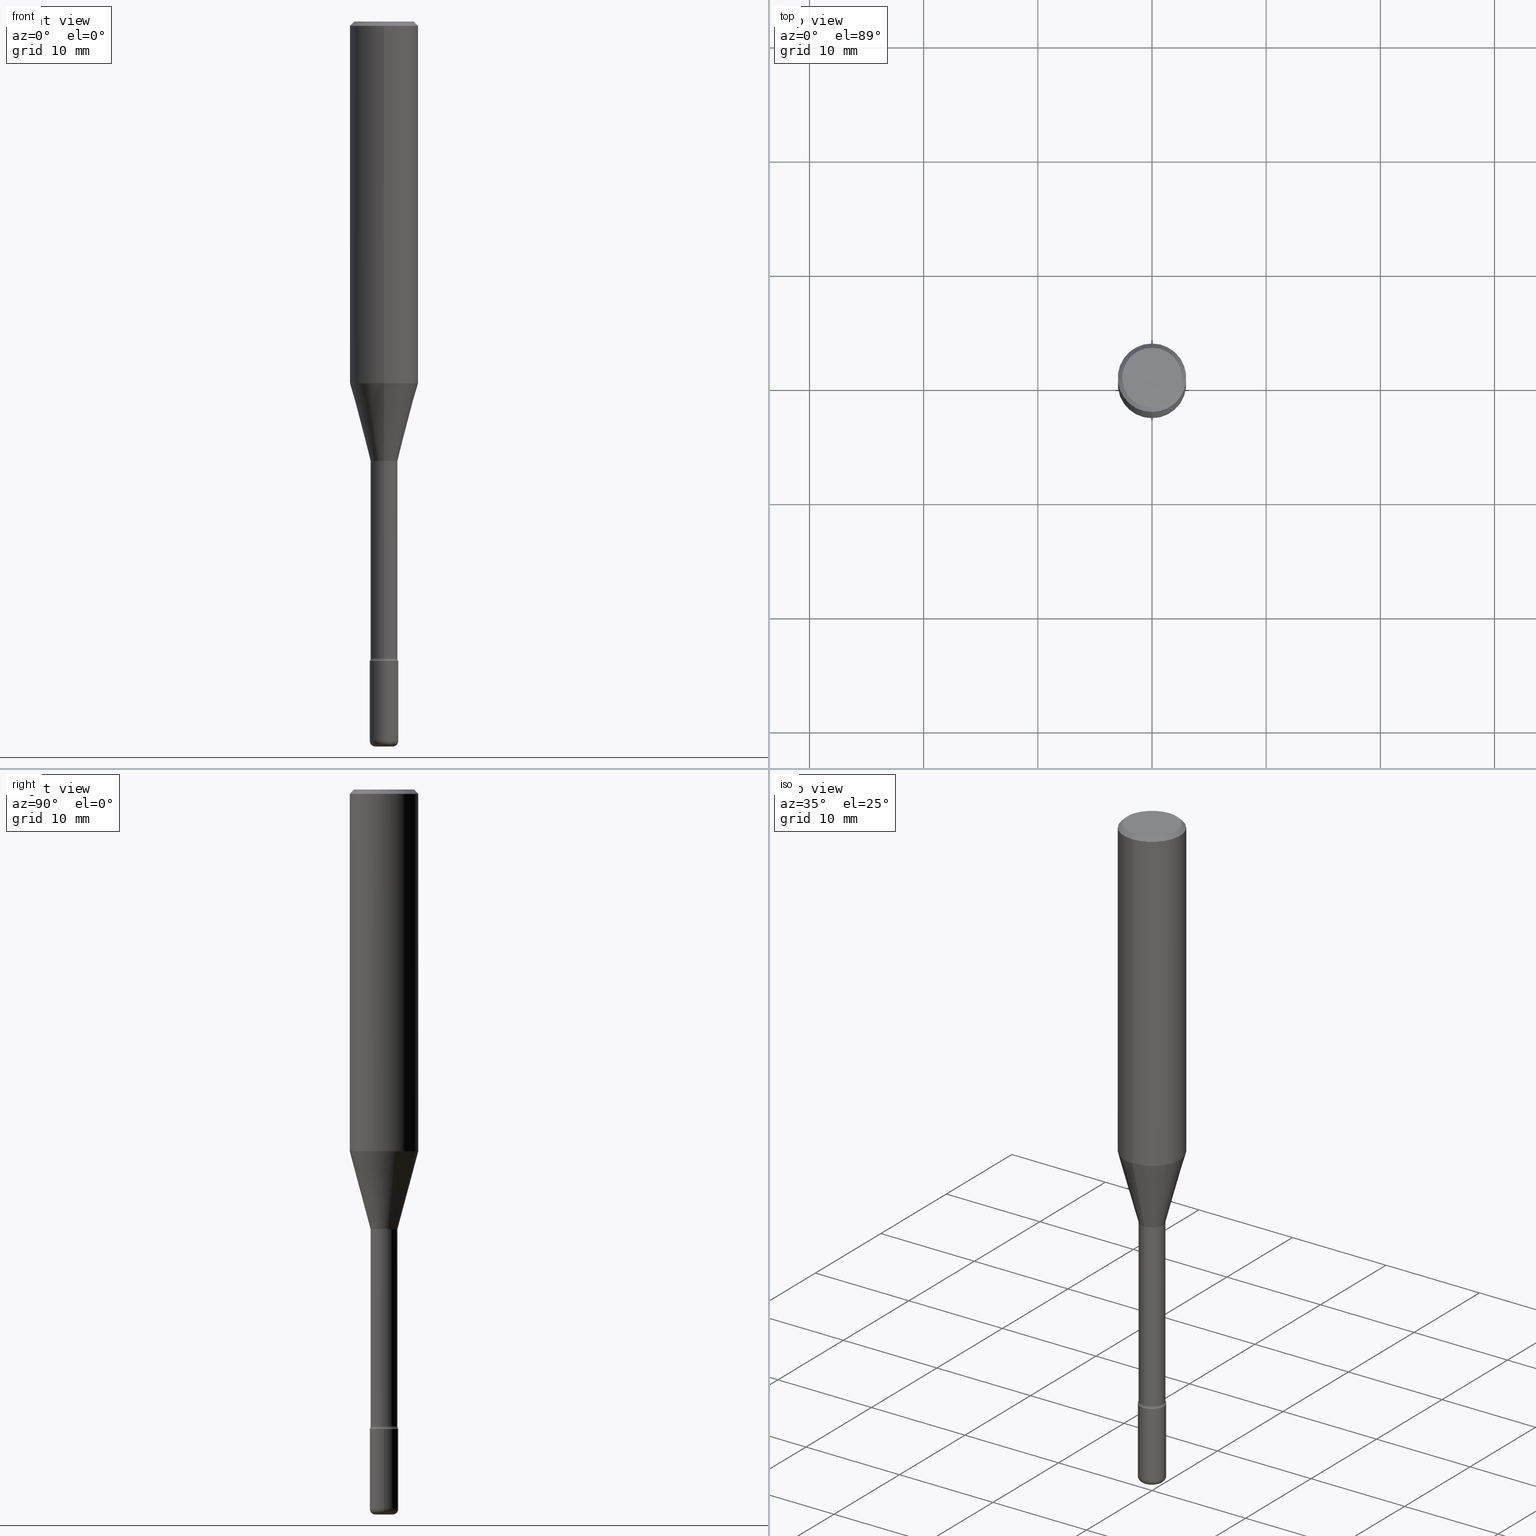
[diagram: canonical four-view strip — front | top / right | iso, engineering-drawing reading convention]
A machine part, canonical four-view strip (front | top / right | iso — engineering-drawing reading convention). The complete STEP part file that produces these views, byte-faithful:
ISO-10303-21;
HEADER;
FILE_DESCRIPTION (( 'STEP AP203' ),
    '1' );
FILE_NAME ('05343.STEP',
    '2024-03-06T20:02:02',
    ( '' ),
    ( '' ),
    'SwSTEP 2.0',
    'SolidWorks 2023',
    '' );
FILE_SCHEMA (( 'CONFIG_CONTROL_DESIGN' ));
ENDSEC;

DATA;
#1 = DIRECTION ( 'NONE',  ( -6.982962677686265922E-15, -1.000000000000000000, 5.906698364679487997E-15 ) ) ;
#2 = CC_DESIGN_APPROVAL ( #83, ( #306 ) ) ;
#3 = AXIS2_PLACEMENT_3D ( 'NONE', #294, #234, #470 ) ;
#4 = ORIENTED_EDGE ( 'NONE', *, *, #138, .T. ) ;
#5 = CARTESIAN_POINT ( 'NONE',  ( -8.246878922347479668E-16, -0.1180999999999999966, 8.903746777448015409E-16 ) ) ;
#6 = ORIENTED_EDGE ( 'NONE', *, *, #155, .F. ) ;
#7 = CARTESIAN_POINT ( 'NONE',  ( -4.277064640082466314E-16, -0.06125000000000530020, -1.517674787463811015 ) ) ;
#8 = ORIENTED_EDGE ( 'NONE', *, *, #129, .T. ) ;
#9 = DIRECTION ( 'NONE',  ( 1.000000000000000000, -6.982962677686276966E-15, 4.883557194083116264E-29 ) ) ;
#10 = CIRCLE ( 'NONE', #276, 0.02950000000000000885 ) ;
#11 = ORIENTED_EDGE ( 'NONE', *, *, #304, .F. ) ;
#12 = FACE_OUTER_BOUND ( 'NONE', #288, .T. ) ;
#13 = CC_DESIGN_PERSON_AND_ORGANIZATION_ASSIGNMENT ( #66, #281, ( #306 ) ) ;
#14 = VERTEX_POINT ( 'NONE', #357 ) ;
#15 = CC_DESIGN_PERSON_AND_ORGANIZATION_ASSIGNMENT ( #546, #106, ( #306 ) ) ;
#16 = DATE_AND_TIME ( #407, #321 ) ;
#17 = CARTESIAN_POINT ( 'NONE',  ( -0.04920000000000008394, -8.310334138738685102E-15, -2.480300000000000171 ) ) ;
#18 = CALENDAR_DATE ( 2024, 6, 3 ) ;
#19 = EDGE_LOOP ( 'NONE', ( #173, #452, #394, #271 ) ) ;
#20 = COORDINATED_UNIVERSAL_TIME_OFFSET ( 5, 0, .BEHIND. ) ;
#21 = ADVANCED_FACE ( 'NONE', ( #464 ), #200, .F. ) ;
#22 = DIRECTION ( 'NONE',  ( -2.445721087227316555E-29, 3.491120058031798950E-15, 1.000000000000000000 ) ) ;
#23 = DIRECTION ( 'NONE',  ( -2.445468806185136597E-29, 3.491481338843145583E-15, 1.000000000000000000 ) ) ;
#24 = VERTEX_POINT ( 'NONE', #198 ) ;
#25 = CONICAL_SURFACE ( 'NONE', #88, 0.04676111260566399169, 0.2617993877991499074 ) ;
#26 = DIRECTION ( 'NONE',  ( 6.982962677686265922E-15, 1.000000000000000000, -3.487819265831411744E-15 ) ) ;
#27 =( CONVERSION_BASED_UNIT ( 'INCH', #419 ) LENGTH_UNIT ( ) NAMED_UNIT ( #515 ) );
#28 = ORIENTED_EDGE ( 'NONE', *, *, #35, .F. ) ;
#29 = CARTESIAN_POINT ( 'NONE',  ( 0.04920000000000000068, -8.041230671489647649E-15, -2.204700000000000326 ) ) ;
#30 = PERSON_AND_ORGANIZATION ( #539, #231 ) ;
#31 = CIRCLE ( 'NONE', #265, 0.04676111260566399169 ) ;
#32 = CIRCLE ( 'NONE', #341, 0.04920000000000000762 ) ;
#33 = DIRECTION ( 'NONE',  ( 1.000000000000000000, -6.982962677686260400E-15, 0.000000000000000000 ) ) ;
#34 = DATE_AND_TIME ( #18, #480 ) ;
#35 = EDGE_CURVE ( 'NONE', #104, #572, #171, .T. ) ;
#36 = AXIS2_PLACEMENT_3D ( 'NONE', #143, #185, #49 ) ;
#37 = CIRCLE ( 'NONE', #345, 0.02950000000000000885 ) ;
#38 = PLANE ( 'NONE',  #209 ) ;
#39 = CARTESIAN_POINT ( 'NONE',  ( 7.199434520694541042E-16, 0.1031000000000000111, -1.353060024532617206E-16 ) ) ;
#40 = EDGE_CURVE ( 'NONE', #192, #410, #59, .T. ) ;
#41 = CARTESIAN_POINT ( 'NONE',  ( 8.391509709326781971E-16, 0.1180999999999999966, 6.577212003769061022E-17 ) ) ;
#42 = EDGE_CURVE ( 'NONE', #14, #24, #179, .T. ) ;
#43 = CARTESIAN_POINT ( 'NONE',  ( 5.392081281010064608E-29, -7.696872391942708362E-15, -2.204700000000000326 ) ) ;
#44 = CC_DESIGN_PERSON_AND_ORGANIZATION_ASSIGNMENT ( #30, #327, ( #556 ) ) ;
#45 = EDGE_LOOP ( 'NONE', ( #309, #213, #489, #11 ) ) ;
#46 = AXIS2_PLACEMENT_3D ( 'NONE', #169, #564, #297 ) ;
#47 = CARTESIAN_POINT ( 'NONE',  ( -8.102248135368174406E-16, -0.1181000000000000522, -0.01499999999999961607 ) ) ;
#48 = ADVANCED_BREP_SHAPE_REPRESENTATION ( '05343', ( #214, #384, #481 ), #174 ) ;
#49 = DIRECTION ( 'NONE',  ( -1.000000000000000000, 6.982962677686265922E-15, -4.876176775795935793E-29 ) ) ;
#50 = ADVANCED_FACE ( 'NONE', ( #469 ), #280, .T. ) ;
#51 = VERTEX_POINT ( 'NONE', #193 ) ;
#52 = CARTESIAN_POINT ( 'NONE',  ( -3.229620238429526702E-16, -0.04625000000000530076, -1.517674787463811015 ) ) ;
#53 = CIRCLE ( 'NONE', #435, 0.1180999999999999966 ) ;
#54 = CONICAL_SURFACE ( 'NONE', #385, 0.1180999999999999966, 0.7853981633974481680 ) ;
#55 = VERTEX_POINT ( 'NONE', #29 ) ;
#56 = CARTESIAN_POINT ( 'NONE',  ( 3.702314243307729011E-29, -5.284831366687687522E-15, -1.513792501787273315 ) ) ;
#57 = ORIENTED_EDGE ( 'NONE', *, *, #40, .T. ) ;
#58 = CARTESIAN_POINT ( 'NONE',  ( -8.246878922347475723E-16, -0.1181000000000000522, -0.01499999999999961607 ) ) ;
#59 = CIRCLE ( 'NONE', #84, 0.04625000000000006883 ) ;
#60 = CARTESIAN_POINT ( 'NONE',  ( 5.370233789924947093E-29, -7.665686409721247305E-15, -2.195767055356714792 ) ) ;
#61 = EDGE_CURVE ( 'NONE', #89, #349, #207, .T. ) ;
#62 = DIRECTION ( 'NONE',  ( -2.445721087227316555E-29, 3.491120058031798950E-15, 1.000000000000000000 ) ) ;
#63 = APPROVAL_PERSON_ORGANIZATION ( #563, #83, #235 ) ;
#64 = ORIENTED_EDGE ( 'NONE', *, *, #220, .F. ) ;
#65 = DIRECTION ( 'NONE',  ( 7.105427357601001859E-15, 1.000000000000000000, -3.491481338843145583E-15 ) ) ;
#66 = PERSON_AND_ORGANIZATION ( #539, #231 ) ;
#67 = EDGE_LOOP ( 'NONE', ( #548, #398 ) ) ;
#68 = DIRECTION ( 'NONE',  ( -6.982962677686265922E-15, -1.000000000000000000, 3.491120058031798950E-15 ) ) ;
#69 = VERTEX_POINT ( 'NONE', #17 ) ;
#70 = FACE_OUTER_BOUND ( 'NONE', #218, .T. ) ;
#71 = EDGE_LOOP ( 'NONE', ( #352, #57, #420, #178 ) ) ;
#72 = CARTESIAN_POINT ( 'NONE',  ( 8.246878922347483612E-16, 0.1180999999999999411, -0.01500000000000044006 ) ) ;
#73 = DIRECTION ( 'NONE',  ( 0.000000000000000000, 0.000000000000000000, 1.000000000000000000 ) ) ;
#74 = DIRECTION ( 'NONE',  ( -2.445721087227316555E-29, 3.491120058031798950E-15, 1.000000000000000000 ) ) ;
#75 = FACE_OUTER_BOUND ( 'NONE', #362, .T. ) ;
#76 = CARTESIAN_POINT ( 'NONE',  ( 3.668581630840980928E-31, -5.236680087047708706E-17, -0.01500000000000002720 ) ) ;
#77 = DIRECTION ( 'NONE',  ( -2.438088387897960049E-29, 3.491481338843145188E-15, 1.000000000000000000 ) ) ;
#78 = EDGE_CURVE ( 'NONE', #482, #69, #450, .T. ) ;
#79 = AXIS2_PLACEMENT_3D ( 'NONE', #7, #396, #145 ) ;
#80 = LINE ( 'NONE', #340, #238 ) ;
#81 = ADVANCED_FACE ( 'NONE', ( #291 ), #187, .F. ) ;
#82 = DIRECTION ( 'NONE',  ( 1.000000000000000000, -6.982962677686265922E-15, 4.876176775795935793E-29 ) ) ;
#83 = APPROVAL ( #516, 'UNSPECIFIED' ) ;
#84 = AXIS2_PLACEMENT_3D ( 'NONE', #60, #74, #422 ) ;
#85 = EDGE_CURVE ( 'NONE', #150, #436, #373, .T. ) ;
#86 = FACE_OUTER_BOUND ( 'NONE', #241, .T. ) ;
#87 = DIRECTION ( 'NONE',  ( 2.445721087227316555E-29, -3.491120058031798950E-15, -1.000000000000000000 ) ) ;
#88 = AXIS2_PLACEMENT_3D ( 'NONE', #392, #348, #313 ) ;
#89 = VERTEX_POINT ( 'NONE', #326 ) ;
#90 = CARTESIAN_POINT ( 'NONE',  ( 3.711426350676407396E-29, -5.298933198862634268E-15, -1.517674787463811237 ) ) ;
#91 = ORIENTED_EDGE ( 'NONE', *, *, #350, .T. ) ;
#92 = ORIENTED_EDGE ( 'NONE', *, *, #78, .T. ) ;
#93 = FACE_OUTER_BOUND ( 'NONE', #390, .T. ) ;
#94 = ORIENTED_EDGE ( 'NONE', *, *, #350, .F. ) ;
#95 = CARTESIAN_POINT ( 'NONE',  ( 8.391509709327088641E-16, 0.1180999999999999411, -0.01500000000000044006 ) ) ;
#96 = UNCERTAINTY_MEASURE_WITH_UNIT (LENGTH_MEASURE( 1.000000000000000082E-05 ), #27, 'distance_accuracy_value', 'NONE');
#97 = ORIENTED_EDGE ( 'NONE', *, *, #134, .T. ) ;
#98 = CIRCLE ( 'NONE', #532, 0.04920000000000000068 ) ;
#99 = ORIENTED_EDGE ( 'NONE', *, *, #216, .T. ) ;
#100 = DATE_AND_TIME ( #233, #453 ) ;
#101 = DIRECTION ( 'NONE',  ( -2.445721087227316555E-29, 3.491120058031798950E-15, 1.000000000000000000 ) ) ;
#102 = DIRECTION ( 'NONE',  ( -2.445721087227316555E-29, 3.491120058031798950E-15, 1.000000000000000000 ) ) ;
#103 = CIRCLE ( 'NONE', #3, 0.01500000000000001853 ) ;
#104 = VERTEX_POINT ( 'NONE', #553 ) ;
#105 = DIRECTION ( 'NONE',  ( -6.982962677686265922E-15, -1.000000000000000000, 5.906698364679487997E-15 ) ) ;
#106 = PERSON_AND_ORGANIZATION_ROLE ( 'design_supplier' ) ;
#107 = VERTEX_POINT ( 'NONE', #239 ) ;
#108 = DIRECTION ( 'NONE',  ( -2.445721087227316555E-29, 3.491120058031798950E-15, 1.000000000000000000 ) ) ;
#109 = DIRECTION ( 'NONE',  ( -6.982962677686265922E-15, -1.000000000000000000, 3.491120058031799739E-15 ) ) ;
#110 = CIRCLE ( 'NONE', #537, 0.04920000000000000068 ) ;
#111 = ORIENTED_EDGE ( 'NONE', *, *, #310, .F. ) ;
#112 = LINE ( 'NONE', #72, #226 ) ;
#113 =( LENGTH_UNIT ( ) NAMED_UNIT ( * ) SI_UNIT ( $, .METRE. ) );
#114 = DIRECTION ( 'NONE',  ( -6.982962677686265922E-15, -1.000000000000000000, 5.842136427980041740E-15 ) ) ;
#115 = VECTOR ( 'NONE', #437, 39.37007874015748143 ) ;
#116 = CARTESIAN_POINT ( 'NONE',  ( 3.391065206415618758E-16, 0.04624999999999240136, -2.195767055356715236 ) ) ;
#117 = CALENDAR_DATE ( 2024, 6, 3 ) ;
#118 = APPROVAL ( #560, 'UNSPECIFIED' ) ;
#119 = CARTESIAN_POINT ( 'NONE',  ( 0.000000000000000000, 0.000000000000000000, 0.000000000000000000 ) ) ;
#120 = CARTESIAN_POINT ( 'NONE',  ( -0.04920000000000000068, 3.495870259939692963E-16, -2.420116064405413767E-30 ) ) ;
#121 = CIRCLE ( 'NONE', #166, 0.01970000000000016877 ) ;
#122 = AXIS2_PLACEMENT_3D ( 'NONE', #334, #374, #26 ) ;
#123 = FACE_OUTER_BOUND ( 'NONE', #71, .T. ) ;
#124 = VECTOR ( 'NONE', #426, 39.37007874015748854 ) ;
#125 = DIRECTION ( 'NONE',  ( -2.445721087227316555E-29, 3.491120058031798950E-15, 1.000000000000000000 ) ) ;
#126 = CIRCLE ( 'NONE', #462, 0.1180999999999999966 ) ;
#127 = APPLICATION_CONTEXT ( 'configuration controlled 3d designs of mechanical parts and assemblies' ) ;
#128 = DIRECTION ( 'NONE',  ( -2.445721087227316555E-29, 3.491120058031798950E-15, 1.000000000000000000 ) ) ;
#129 = EDGE_CURVE ( 'NONE', #51, #184, #126, .T. ) ;
#130 = SECURITY_CLASSIFICATION ( '', '', #460 ) ;
#131 = DIRECTION ( 'NONE',  ( -2.445721087227316555E-29, 3.491120058031798950E-15, 1.000000000000000000 ) ) ;
#132 = ORIENTED_EDGE ( 'NONE', *, *, #160, .T. ) ;
#133 = DIRECTION ( 'NONE',  ( 1.000000000000000000, -6.982962677686266711E-15, 4.876176775795935793E-29 ) ) ;
#134 = EDGE_CURVE ( 'NONE', #349, #444, #112, .T. ) ;
#135 = ORIENTED_EDGE ( 'NONE', *, *, #304, .T. ) ;
#136 = CARTESIAN_POINT ( 'NONE',  ( 4.352074256531156888E-16, 0.06124999999999242856, -2.195767055356715236 ) ) ;
#137 = APPLICATION_CONTEXT ( 'configuration controlled 3d designs of mechanical parts and assemblies' ) ;
#138 = EDGE_CURVE ( 'NONE', #69, #533, #32, .T. ) ;
#139 = AXIS2_PLACEMENT_3D ( 'NONE', #570, #125, #208 ) ;
#140 = FACE_OUTER_BOUND ( 'NONE', #486, .T. ) ;
#141 = AXIS2_PLACEMENT_3D ( 'NONE', #90, #131, #264 ) ;
#142 = ORIENTED_EDGE ( 'NONE', *, *, #42, .F. ) ;
#143 = CARTESIAN_POINT ( 'NONE',  ( 2.059973989918060520E-16, 0.02949999999999127973, -2.500000000000000000 ) ) ;
#144 = EDGE_LOOP ( 'NONE', ( #186, #529 ) ) ;
#145 = DIRECTION ( 'NONE',  ( -6.982962677686263555E-15, -1.000000000000000000, 0.000000000000000000 ) ) ;
#146 = EDGE_LOOP ( 'NONE', ( #132, #266, #188, #457 ) ) ;
#147 = DIRECTION ( 'NONE',  ( 1.000000000000000000, -6.982962677686261977E-15, 0.000000000000000000 ) ) ;
#148 = APPLICATION_PROTOCOL_DEFINITION ( 'international standard', 'config_control_design', 1994, #137 ) ;
#149 = CC_DESIGN_APPROVAL ( #339, ( #130 ) ) ;
#150 = VERTEX_POINT ( 'NONE', #551 ) ;
#151 = CARTESIAN_POINT ( 'NONE',  ( 5.391525076996371277E-29, -7.697668907747483125E-15, -2.204700000000000326 ) ) ;
#152 = MECHANICAL_CONTEXT ( 'NONE', #127, 'mechanical' ) ;
#153 = ORIENTED_EDGE ( 'NONE', *, *, #547, .F. ) ;
#154 = DIRECTION ( 'NONE',  ( -2.445468806185136597E-29, 3.491481338843145583E-15, 1.000000000000000000 ) ) ;
#155 = EDGE_CURVE ( 'NONE', #491, #55, #98, .T. ) ;
#156 = AXIS2_PLACEMENT_3D ( 'NONE', #368, #459, #68 ) ;
#157 = CARTESIAN_POINT ( 'NONE',  ( 5.369679839523838347E-29, -7.666479698224534368E-15, -2.195767055356714792 ) ) ;
#158 = DIRECTION ( 'NONE',  ( -2.445721087227316555E-29, 3.491120058031798950E-15, 1.000000000000000000 ) ) ;
#159 = CARTESIAN_POINT ( 'NONE',  ( 6.113672015462842613E-29, -8.728703347107866520E-15, -2.500000000000000444 ) ) ;
#160 = EDGE_CURVE ( 'NONE', #533, #69, #494, .T. ) ;
#161 = CARTESIAN_POINT ( 'NONE',  ( 6.065496279980994755E-29, -8.659921164732655335E-15, -2.480300000000000171 ) ) ;
#162 = COORDINATED_UNIVERSAL_TIME_OFFSET ( 5, 0, .BEHIND. ) ;
#163 = FACE_OUTER_BOUND ( 'NONE', #67, .T. ) ;
#164 = ADVANCED_FACE ( 'NONE', ( #70 ), #377, .T. ) ;
#165 = DIRECTION ( 'NONE',  ( 1.839019923739597554E-15, 0.2588190451025245697, 0.9659258262890670910 ) ) ;
#166 = AXIS2_PLACEMENT_3D ( 'NONE', #347, #448, #490 ) ;
#167 = DESIGN_CONTEXT ( 'detailed design', #137, 'design' ) ;
#168 = CYLINDRICAL_SURFACE ( 'NONE', #139, 0.1180999999999999966 ) ;
#169 = CARTESIAN_POINT ( 'NONE',  ( -4.277064640082308048E-16, -0.06125000000000776351, -2.195767055356714348 ) ) ;
#170 = ORIENTED_EDGE ( 'NONE', *, *, #310, .T. ) ;
#171 = CIRCLE ( 'NONE', #250, 0.04920000000000000068 ) ;
#172 = LINE ( 'NONE', #429, #433 ) ;
#173 = ORIENTED_EDGE ( 'NONE', *, *, #501, .T. ) ;
#174 =( GEOMETRIC_REPRESENTATION_CONTEXT ( 3 ) GLOBAL_UNCERTAINTY_ASSIGNED_CONTEXT ( ( #96 ) ) GLOBAL_UNIT_ASSIGNED_CONTEXT ( ( #27, #375, #554 ) ) REPRESENTATION_CONTEXT ( 'NONE', 'WORKASPACE' ) );
#175 = DIRECTION ( 'NONE',  ( 1.000000000000000000, -7.105427357601001070E-15, 4.926311084128190142E-29 ) ) ;
#176 = EDGE_LOOP ( 'NONE', ( #441, #415, #493, #354 ) ) ;
#177 = EDGE_CURVE ( 'NONE', #107, #482, #37, .T. ) ;
#178 = ORIENTED_EDGE ( 'NONE', *, *, #85, .F. ) ;
#179 = CIRCLE ( 'NONE', #287, 0.04676111260566399169 ) ;
#180 = ADVANCED_FACE ( 'NONE', ( #199 ), #372, .T. ) ;
#181 = DIRECTION ( 'NONE',  ( -2.445468806185136597E-29, 3.491481338843145583E-15, 1.000000000000000000 ) ) ;
#182 = ORIENTED_EDGE ( 'NONE', *, *, #501, .F. ) ;
#183 = CARTESIAN_POINT ( 'NONE',  ( -0.02950000000000000885, -8.414713689398659955E-15, -2.500000000000000444 ) ) ;
#184 = VERTEX_POINT ( 'NONE', #513 ) ;
#185 = DIRECTION ( 'NONE',  ( 2.438088387897960049E-29, -3.491481338843145188E-15, -1.000000000000000000 ) ) ;
#186 = ORIENTED_EDGE ( 'NONE', *, *, #177, .F. ) ;
#187 = PLANE ( 'NONE',  #425 ) ;
#188 = ORIENTED_EDGE ( 'NONE', *, *, #381, .F. ) ;
#189 = APPROVAL_DATE_TIME ( #16, #339 ) ;
#190 = DIRECTION ( 'NONE',  ( 4.937700262164546464E-15, 0.7071067811865447972, -0.7071067811865500152 ) ) ;
#191 = AXIS2_PLACEMENT_3D ( 'NONE', #319, #495, #109 ) ;
#192 = VERTEX_POINT ( 'NONE', #116 ) ;
#193 = CARTESIAN_POINT ( 'NONE',  ( 8.391509709327088641E-16, 0.1180999999999956807, -1.247552149476177430 ) ) ;
#194 = AXIS2_PLACEMENT_3D ( 'NONE', #523, #215, #479 ) ;
#195 = EDGE_CURVE ( 'NONE', #14, #150, #103, .T. ) ;
#196 = CARTESIAN_POINT ( 'NONE',  ( 0.04920000000000008394, -9.003482928474821437E-15, -2.480300000000000171 ) ) ;
#197 = CIRCLE ( 'NONE', #46, 0.01500000000000002720 ) ;
#198 = CARTESIAN_POINT ( 'NONE',  ( -3.265311040923994566E-16, -0.04676111260566927219, -1.513792501787273093 ) ) ;
#199 = FACE_OUTER_BOUND ( 'NONE', #19, .T. ) ;
#200 = TOROIDAL_SURFACE ( 'NONE', #256, 0.06125000000000009603, 0.01500000000000002373 ) ;
#201 = DIRECTION ( 'NONE',  ( -6.982962677686265922E-15, -1.000000000000000000, 3.491120058031798950E-15 ) ) ;
#202 = DATE_TIME_ROLE ( 'creation_date' ) ;
#203 = CC_DESIGN_SECURITY_CLASSIFICATION ( #130, ( #306 ) ) ;
#204 = FACE_OUTER_BOUND ( 'NONE', #225, .T. ) ;
#205 = ADVANCED_FACE ( 'NONE', ( #75 ), #418, .F. ) ;
#206 = DIRECTION ( 'NONE',  ( -6.982962677686265922E-15, -1.000000000000000000, 4.626330217890369336E-15 ) ) ;
#207 = CIRCLE ( 'NONE', #156, 0.1031000000000000111 ) ;
#208 = DIRECTION ( 'NONE',  ( -6.982962677686265922E-15, -1.000000000000000000, 3.491120058031799739E-15 ) ) ;
#209 = AXIS2_PLACEMENT_3D ( 'NONE', #251, #77, #82 ) ;
#210 = AXIS2_PLACEMENT_3D ( 'NONE', #358, #484, #492 ) ;
#211 = LINE ( 'NONE', #47, #124 ) ;
#212 = VECTOR ( 'NONE', #128, 39.37007874015748143 ) ;
#213 = ORIENTED_EDGE ( 'NONE', *, *, #500, .T. ) ;
#214 = MANIFOLD_SOLID_BREP ( 'Body-Move/Copy2[1]', #478 ) ;
#215 = DIRECTION ( 'NONE',  ( -2.445721087227316555E-29, 3.491120058031798950E-15, 1.000000000000000000 ) ) ;
#216 = EDGE_CURVE ( 'NONE', #14, #51, #423, .T. ) ;
#217 = CC_DESIGN_DATE_AND_TIME_ASSIGNMENT ( #100, #416, ( #130 ) ) ;
#218 = EDGE_LOOP ( 'NONE', ( #111, #370, #97, #320 ) ) ;
#219 = LINE ( 'NONE', #5, #405 ) ;
#220 = EDGE_CURVE ( 'NONE', #572, #104, #300, .T. ) ;
#221 = DIRECTION ( 'NONE',  ( -6.982962677686265922E-15, -1.000000000000000000, 3.487819265831411744E-15 ) ) ;
#222 = EDGE_LOOP ( 'NONE', ( #91, #99, #275, #461 ) ) ;
#223 = ADVANCED_FACE ( 'NONE', ( #522 ), #168, .T. ) ;
#224 = DIRECTION ( 'NONE',  ( -6.982962677686265922E-15, -1.000000000000000000, 5.842136427980041740E-15 ) ) ;
#225 = EDGE_LOOP ( 'NONE', ( #142, #555, #540, #388 ) ) ;
#226 = VECTOR ( 'NONE', #190, 39.37007874015748854 ) ;
#227 = CARTESIAN_POINT ( 'NONE',  ( 5.370233789924947093E-29, -7.665686409721247305E-15, -2.195767055356714792 ) ) ;
#228 = EDGE_LOOP ( 'NONE', ( #552, #273, #236, #325 ) ) ;
#229 = AXIS2_PLACEMENT_3D ( 'NONE', #528, #391, #133 ) ;
#230 = DIRECTION ( 'NONE',  ( 7.105427357600997914E-15, 1.000000000000000000, 0.000000000000000000 ) ) ;
#231 = ORGANIZATION ( 'UNSPECIFIED', 'UNSPECIFIED', '' ) ;
#232 = ORIENTED_EDGE ( 'NONE', *, *, #440, .F. ) ;
#233 = CALENDAR_DATE ( 2024, 6, 3 ) ;
#234 = DIRECTION ( 'NONE',  ( 1.000000000000000000, -7.105427357601001070E-15, 4.926311084128190142E-29 ) ) ;
#235 = APPROVAL_ROLE ( '' ) ;
#236 = ORIENTED_EDGE ( 'NONE', *, *, #440, .T. ) ;
#237 = APPROVAL_STATUS ( 'not_yet_approved' ) ;
#238 = VECTOR ( 'NONE', #565, 39.37007874015748143 ) ;
#239 = CARTESIAN_POINT ( 'NONE',  ( 0.02950000000000000885, -8.934700746099610252E-15, -2.500000000000000444 ) ) ;
#240 = CARTESIAN_POINT ( 'NONE',  ( -3.435617637421105364E-16, -0.04920000000000771673, -2.204699999999999882 ) ) ;
#241 = EDGE_LOOP ( 'NONE', ( #346, #316 ) ) ;
#242 = CARTESIAN_POINT ( 'NONE',  ( 3.435617637422181666E-16, 0.04919999999999229851, -2.204700000000000326 ) ) ;
#243 = VECTOR ( 'NONE', #445, 39.37007874015748143 ) ;
#244 = EDGE_LOOP ( 'NONE', ( #64, #28 ) ) ;
#245 = ADVANCED_FACE ( 'NONE', ( #477 ), #54, .T. ) ;
#246 = CARTESIAN_POINT ( 'NONE',  ( 3.711809231253478318E-29, -5.298384892084059115E-15, -1.517674787463811237 ) ) ;
#247 = DIRECTION ( 'NONE',  ( 1.000000000000000000, 0.000000000000000000, 0.000000000000000000 ) ) ;
#248 = CARTESIAN_POINT ( 'NONE',  ( 3.702314243307729011E-29, -5.284831366687687522E-15, -1.513792501787273315 ) ) ;
#249 = COORDINATED_UNIVERSAL_TIME_OFFSET ( 5, 0, .BEHIND. ) ;
#250 = AXIS2_PLACEMENT_3D ( 'NONE', #330, #511, #542 ) ;
#251 = CARTESIAN_POINT ( 'NONE',  ( 5.391525076996371277E-29, -7.697668907747483125E-15, -2.204700000000000326 ) ) ;
#252 = AXIS2_PLACEMENT_3D ( 'NONE', #311, #102, #221 ) ;
#253 = CARTESIAN_POINT ( 'NONE',  ( 3.668581630840980928E-31, -5.236680087047708706E-17, -0.01500000000000002720 ) ) ;
#254 = AXIS2_PLACEMENT_3D ( 'NONE', #338, #260, #568 ) ;
#255 = DIRECTION ( 'NONE',  ( -2.445468806185136597E-29, 3.491481338843145583E-15, 1.000000000000000000 ) ) ;
#256 = AXIS2_PLACEMENT_3D ( 'NONE', #157, #359, #283 ) ;
#257 = EDGE_CURVE ( 'NONE', #410, #436, #387, .T. ) ;
#258 = LINE ( 'NONE', #41, #212 ) ;
#259 = CONICAL_SURFACE ( 'NONE', #443, 0.04676111260566399169, 0.2617993877991499074 ) ;
#260 = DIRECTION ( 'NONE',  ( -2.445721087227316555E-29, 3.491120058031798950E-15, 1.000000000000000000 ) ) ;
#261 = ADVANCED_FACE ( 'NONE', ( #86 ), #38, .T. ) ;
#262 = EDGE_CURVE ( 'NONE', #184, #51, #535, .T. ) ;
#263 = ORIENTED_EDGE ( 'NONE', *, *, #485, .T. ) ;
#264 = DIRECTION ( 'NONE',  ( -6.982962677686265922E-15, -1.000000000000000000, 3.491120058031798950E-15 ) ) ;
#265 = AXIS2_PLACEMENT_3D ( 'NONE', #382, #380, #343 ) ;
#266 = ORIENTED_EDGE ( 'NONE', *, *, #282, .T. ) ;
#267 = FACE_OUTER_BOUND ( 'NONE', #222, .T. ) ;
#268 = ORIENTED_EDGE ( 'NONE', *, *, #465, .T. ) ;
#269 = FACE_OUTER_BOUND ( 'NONE', #228, .T. ) ;
#270 = TOROIDAL_SURFACE ( 'NONE', #194, 0.06124999999999999889, 0.01500000000000001506 ) ;
#271 = ORIENTED_EDGE ( 'NONE', *, *, #257, .F. ) ;
#272 = DIRECTION ( 'NONE',  ( -2.445721087227316555E-29, 3.491120058031798950E-15, 1.000000000000000000 ) ) ;
#273 = ORIENTED_EDGE ( 'NONE', *, *, #543, .T. ) ;
#274 = DIRECTION ( 'NONE',  ( -2.445468806185136597E-29, 3.491481338843145583E-15, 1.000000000000000000 ) ) ;
#275 = ORIENTED_EDGE ( 'NONE', *, *, #262, .F. ) ;
#276 = AXIS2_PLACEMENT_3D ( 'NONE', #159, #23, #504 ) ;
#277 = DIRECTION ( 'NONE',  ( -6.982962677686265922E-15, -1.000000000000000000, 3.491120058031798950E-15 ) ) ;
#278 = PLANE ( 'NONE',  #36 ) ;
#279 = EDGE_LOOP ( 'NONE', ( #569, #170, #307, #502 ) ) ;
#280 = CYLINDRICAL_SURFACE ( 'NONE', #558, 0.04920000000000000068 ) ;
#281 = PERSON_AND_ORGANIZATION_ROLE ( 'creator' ) ;
#282 = EDGE_CURVE ( 'NONE', #69, #491, #526, .T. ) ;
#283 = DIRECTION ( 'NONE',  ( -6.982962677686265922E-15, -1.000000000000000000, 3.491120058031798950E-15 ) ) ;
#284 = PERSON_AND_ORGANIZATION ( #539, #231 ) ;
#285 = DIRECTION ( 'NONE',  ( -2.445468806185136597E-29, 3.491481338843145583E-15, 1.000000000000000000 ) ) ;
#286 = DIRECTION ( 'NONE',  ( -6.982962677686265922E-15, -1.000000000000000000, 3.487819265831411744E-15 ) ) ;
#287 = AXIS2_PLACEMENT_3D ( 'NONE', #248, #293, #114 ) ;
#288 = EDGE_LOOP ( 'NONE', ( #446, #401, #483, #318 ) ) ;
#289 = EDGE_CURVE ( 'NONE', #192, #150, #172, .T. ) ;
#290 = EDGE_CURVE ( 'NONE', #51, #444, #258, .T. ) ;
#291 = FACE_OUTER_BOUND ( 'NONE', #244, .T. ) ;
#292 = AXIS2_PLACEMENT_3D ( 'NONE', #566, #518, #206 ) ;
#293 = DIRECTION ( 'NONE',  ( -2.445721087227316555E-29, 3.491120058031798950E-15, 1.000000000000000000 ) ) ;
#294 = CARTESIAN_POINT ( 'NONE',  ( 4.352074256530983831E-16, 0.06124999999999469064, -1.517674787463811459 ) ) ;
#295 = DATE_AND_TIME ( #117, #355 ) ;
#296 = PLANE ( 'NONE',  #557 ) ;
#297 = DIRECTION ( 'NONE',  ( -6.982962677686263555E-15, -1.000000000000000000, 0.000000000000000000 ) ) ;
#298 = CC_DESIGN_PERSON_AND_ORGANIZATION_ASSIGNMENT ( #284, #458, ( #130 ) ) ;
#299 = AXIS2_PLACEMENT_3D ( 'NONE', #227, #356, #317 ) ;
#300 = CIRCLE ( 'NONE', #428, 0.04920000000000000068 ) ;
#301 = CARTESIAN_POINT ( 'NONE',  ( 5.391525076996371277E-29, -7.697668907747483125E-15, -2.204700000000000326 ) ) ;
#302 = ADVANCED_FACE ( 'NONE', ( #123 ), #474, .T. ) ;
#303 = DIRECTION ( 'NONE',  ( 6.982962677686265922E-15, 1.000000000000000000, -3.487819265831411744E-15 ) ) ;
#304 = EDGE_CURVE ( 'NONE', #410, #572, #197, .T. ) ;
#305 = CC_DESIGN_PERSON_AND_ORGANIZATION_ASSIGNMENT ( #361, #471, ( #521 ) ) ;
#306 = PRODUCT_DEFINITION_FORMATION_WITH_SPECIFIED_SOURCE ( 'ANY', '', #556, .NOT_KNOWN. ) ;
#307 = ORIENTED_EDGE ( 'NONE', *, *, #399, .T. ) ;
#308 = FACE_OUTER_BOUND ( 'NONE', #328, .T. ) ;
#309 = ORIENTED_EDGE ( 'NONE', *, *, #40, .F. ) ;
#310 = EDGE_CURVE ( 'NONE', #89, #496, #211, .T. ) ;
#311 = CARTESIAN_POINT ( 'NONE',  ( 3.668581630840980928E-31, -5.236680087047708706E-17, -0.01500000000000002720 ) ) ;
#312 = ORIENTED_EDGE ( 'NONE', *, *, #177, .T. ) ;
#313 = DIRECTION ( 'NONE',  ( -6.982962677686265922E-15, -1.000000000000000000, 5.842136427980041740E-15 ) ) ;
#314 = ORIENTED_EDGE ( 'NONE', *, *, #160, .F. ) ;
#315 = CIRCLE ( 'NONE', #386, 0.04624999999999999944 ) ;
#316 = ORIENTED_EDGE ( 'NONE', *, *, #155, .T. ) ;
#317 = DIRECTION ( 'NONE',  ( -6.982962677686265922E-15, -1.000000000000000000, 5.906698364679479320E-15 ) ) ;
#318 = ORIENTED_EDGE ( 'NONE', *, *, #465, .F. ) ;
#319 = CARTESIAN_POINT ( 'NONE',  ( -1.169113584055446105E-44, 1.669184350826100908E-30, 4.780733988912460139E-16 ) ) ;
#320 = ORIENTED_EDGE ( 'NONE', *, *, #547, .T. ) ;
#321 = LOCAL_TIME ( 15, 2, 2.000000000000000000, #20 ) ;
#322 = CARTESIAN_POINT ( 'NONE',  ( -0.02950000000000000192, -8.450311057683425200E-15, -2.480300000000000171 ) ) ;
#323 = AXIS2_PLACEMENT_3D ( 'NONE', #562, #101, #277 ) ;
#324 = CALENDAR_DATE ( 2024, 6, 3 ) ;
#325 = ORIENTED_EDGE ( 'NONE', *, *, #138, .F. ) ;
#326 = CARTESIAN_POINT ( 'NONE',  ( -7.587710785535310407E-16, -0.1031000000000000111, 3.311180301514658338E-16 ) ) ;
#327 = PERSON_AND_ORGANIZATION_ROLE ( 'design_owner' ) ;
#328 = EDGE_LOOP ( 'NONE', ( #342, #94, #524, #263 ) ) ;
#329 = CARTESIAN_POINT ( 'NONE',  ( 6.113672015462842613E-29, -8.728703347107866520E-15, -2.500000000000000444 ) ) ;
#330 = CARTESIAN_POINT ( 'NONE',  ( 5.392081281010064608E-29, -7.696872391942708362E-15, -2.204700000000000326 ) ) ;
#331 = ADVANCED_FACE ( 'NONE', ( #204 ), #270, .F. ) ;
#332 = DIRECTION ( 'NONE',  ( -6.982962677686265922E-15, -1.000000000000000000, 3.491120058031800528E-15 ) ) ;
#333 = APPROVAL_ROLE ( '' ) ;
#334 = CARTESIAN_POINT ( 'NONE',  ( 3.668581630840980928E-31, -5.236680087047708706E-17, -0.01500000000000002720 ) ) ;
#335 = DATE_AND_TIME ( #324, #376 ) ;
#336 = DIRECTION ( 'NONE',  ( 2.445721087227315994E-29, -3.491120058031798950E-15, -1.000000000000000000 ) ) ;
#337 = DIRECTION ( 'NONE',  ( -2.445721087227316555E-29, 3.491120058031798950E-15, 1.000000000000000000 ) ) ;
#338 = CARTESIAN_POINT ( 'NONE',  ( -1.169113584055446105E-44, 1.669184350826100908E-30, 4.780733988912460139E-16 ) ) ;
#339 = APPROVAL ( #237, 'UNSPECIFIED' ) ;
#340 = CARTESIAN_POINT ( 'NONE',  ( 0.04920000000000000068, -3.435617637421643269E-16, 2.399078973691600472E-30 ) ) ;
#341 = AXIS2_PLACEMENT_3D ( 'NONE', #365, #285, #33 ) ;
#342 = ORIENTED_EDGE ( 'NONE', *, *, #195, .F. ) ;
#343 = DIRECTION ( 'NONE',  ( -6.982962677686265922E-15, -1.000000000000000000, 5.842136427980041740E-15 ) ) ;
#344 = APPROVAL_PERSON_ORGANIZATION ( #424, #118, #333 ) ;
#345 = AXIS2_PLACEMENT_3D ( 'NONE', #329, #509, #421 ) ;
#346 = ORIENTED_EDGE ( 'NONE', *, *, #381, .T. ) ;
#347 = CARTESIAN_POINT ( 'NONE',  ( 0.02950000000000000192, -8.865918563724400645E-15, -2.480300000000000171 ) ) ;
#348 = DIRECTION ( 'NONE',  ( -2.445721087227316555E-29, 3.491120058031798950E-15, 1.000000000000000000 ) ) ;
#349 = VERTEX_POINT ( 'NONE', #430 ) ;
#350 = EDGE_CURVE ( 'NONE', #24, #14, #31, .T. ) ;
#351 = CYLINDRICAL_SURFACE ( 'NONE', #229, 0.04920000000000000068 ) ;
#352 = ORIENTED_EDGE ( 'NONE', *, *, #289, .F. ) ;
#353 = CARTESIAN_POINT ( 'NONE',  ( -3.229620238429365971E-16, -0.04625000000000773631, -2.195767055356714348 ) ) ;
#354 = ORIENTED_EDGE ( 'NONE', *, *, #129, .F. ) ;
#355 = LOCAL_TIME ( 15, 2, 2.000000000000000000, #514 ) ;
#356 = DIRECTION ( 'NONE',  ( -2.445721087227316555E-29, 3.491120058031798950E-15, 1.000000000000000000 ) ) ;
#357 = CARTESIAN_POINT ( 'NONE',  ( 5.857043298564459926E-16, 0.04676111260565870426, -1.513792501787273537 ) ) ;
#358 = CARTESIAN_POINT ( 'NONE',  ( 7.059760297607168192E-46, -1.004289602807351628E-31, -2.881644783161265537E-17 ) ) ;
#359 = DIRECTION ( 'NONE',  ( -2.445721087227316555E-29, 3.491120058031798950E-15, 1.000000000000000000 ) ) ;
#360 = DIRECTION ( 'NONE',  ( -2.445468806185136597E-29, 3.491481338843145583E-15, 1.000000000000000000 ) ) ;
#361 = PERSON_AND_ORGANIZATION ( #539, #231 ) ;
#362 = EDGE_LOOP ( 'NONE', ( #449, #182, #135, #527 ) ) ;
#363 = SHAPE_DEFINITION_REPRESENTATION ( #507, #48 ) ;
#364 = CIRCLE ( 'NONE', #488, 0.01500000000000002720 ) ;
#365 = CARTESIAN_POINT ( 'NONE',  ( 6.065496279980994755E-29, -8.659921164732655335E-15, -2.480300000000000171 ) ) ;
#366 = VECTOR ( 'NONE', #165, 39.37007874015748854 ) ;
#367 = EDGE_LOOP ( 'NONE', ( #438, #8, #268, #153 ) ) ;
#368 = CARTESIAN_POINT ( 'NONE',  ( 7.059760297607168192E-46, -1.004289602807351628E-31, -2.881644783161265537E-17 ) ) ;
#369 = APPLICATION_PROTOCOL_DEFINITION ( 'international standard', 'config_control_design', 1994, #127 ) ;
#370 = ORIENTED_EDGE ( 'NONE', *, *, #505, .F. ) ;
#371 = CLOSED_SHELL ( 'NONE', ( #331, #180, #21, #245, #530, #517, #397, #223, #164, #379, #81, #205, #302, #395 ) ) ;
#372 = CYLINDRICAL_SURFACE ( 'NONE', #550, 0.04625000000000003414 ) ;
#373 = CIRCLE ( 'NONE', #431, 0.04624999999999999944 ) ;
#374 = DIRECTION ( 'NONE',  ( 2.445721087227316555E-29, -3.491120058031798950E-15, -1.000000000000000000 ) ) ;
#375 =( NAMED_UNIT ( * ) PLANE_ANGLE_UNIT ( ) SI_UNIT ( $, .RADIAN. ) );
#376 = LOCAL_TIME ( 15, 2, 2.000000000000000000, #162 ) ;
#377 = CONICAL_SURFACE ( 'NONE', #122, 0.1180999999999999966, 0.7853981633974481680 ) ;
#378 = EDGE_CURVE ( 'NONE', #533, #55, #80, .T. ) ;
#379 = ADVANCED_FACE ( 'NONE', ( #163 ), #296, .F. ) ;
#380 = DIRECTION ( 'NONE',  ( -2.445721087227316555E-29, 3.491120058031798950E-15, 1.000000000000000000 ) ) ;
#381 = EDGE_CURVE ( 'NONE', #55, #491, #110, .T. ) ;
#382 = CARTESIAN_POINT ( 'NONE',  ( 3.702314243307729011E-29, -5.284831366687687522E-15, -1.513792501787273315 ) ) ;
#383 = CARTESIAN_POINT ( 'NONE',  ( -3.229620238429900424E-16, -0.04625000000000003414, 6.395377015752169353E-16 ) ) ;
#384 = MANIFOLD_SOLID_BREP ( 'Body-Move/Copy2[2]', #371 ) ;
#385 = AXIS2_PLACEMENT_3D ( 'NONE', #253, #87, #303 ) ;
#386 = AXIS2_PLACEMENT_3D ( 'NONE', #531, #272, #1 ) ;
#387 = LINE ( 'NONE', #383, #466 ) ;
#388 = ORIENTED_EDGE ( 'NONE', *, *, #402, .F. ) ;
#389 = DIRECTION ( 'NONE',  ( -6.982962677686265922E-15, -1.000000000000000000, 5.552536572488340164E-15 ) ) ;
#390 = EDGE_LOOP ( 'NONE', ( #312, #92, #314, #232 ) ) ;
#391 = DIRECTION ( 'NONE',  ( -2.445468806185136597E-29, 3.491481338843145583E-15, 1.000000000000000000 ) ) ;
#392 = CARTESIAN_POINT ( 'NONE',  ( 3.702314243307729011E-29, -5.284831366687687522E-15, -1.513792501787273315 ) ) ;
#393 = CIRCLE ( 'NONE', #79, 0.01500000000000001853 ) ;
#394 = ORIENTED_EDGE ( 'NONE', *, *, #485, .F. ) ;
#395 = ADVANCED_FACE ( 'NONE', ( #308 ), #536, .F. ) ;
#396 = DIRECTION ( 'NONE',  ( -1.000000000000000000, 6.982962677686265922E-15, -4.883557194083112901E-29 ) ) ;
#397 = ADVANCED_FACE ( 'NONE', ( #439 ), #25, .T. ) ;
#398 = ORIENTED_EDGE ( 'NONE', *, *, #61, .T. ) ;
#399 = EDGE_CURVE ( 'NONE', #496, #444, #549, .T. ) ;
#400 = CARTESIAN_POINT ( 'NONE',  ( -0.04920000000000000068, -7.829208010246099786E-15, -2.204700000000000326 ) ) ;
#401 = ORIENTED_EDGE ( 'NONE', *, *, #290, .T. ) ;
#402 = EDGE_CURVE ( 'NONE', #24, #436, #393, .T. ) ;
#403 = CARTESIAN_POINT ( 'NONE',  ( 6.065496279980994755E-29, -8.659921164732655335E-15, -2.480300000000000171 ) ) ;
#404 = ORIENTED_EDGE ( 'NONE', *, *, #378, .T. ) ;
#405 = VECTOR ( 'NONE', #487, 39.37007874015748143 ) ;
#406 = LINE ( 'NONE', #451, #243 ) ;
#407 = CALENDAR_DATE ( 2024, 6, 3 ) ;
#408 = DIRECTION ( 'NONE',  ( 1.000000000000000000, -6.982962677686266711E-15, 4.876176775795935793E-29 ) ) ;
#409 = APPROVAL_DATE_TIME ( #295, #118 ) ;
#410 = VERTEX_POINT ( 'NONE', #353 ) ;
#411 = ADVANCED_FACE ( 'NONE', ( #269 ), #475, .T. ) ;
#412 = COORDINATED_UNIVERSAL_TIME_OFFSET ( 5, 0, .BEHIND. ) ;
#413 = CARTESIAN_POINT ( 'NONE',  ( 3.051164599389650582E-29, -4.355354332476965725E-15, -1.247552149476176764 ) ) ;
#414 = DIRECTION ( 'NONE',  ( -2.445721087227316555E-29, 3.491120058031798950E-15, 1.000000000000000000 ) ) ;
#415 = ORIENTED_EDGE ( 'NONE', *, *, #42, .T. ) ;
#416 = DATE_TIME_ROLE ( 'classification_date' ) ;
#417 = CARTESIAN_POINT ( 'NONE',  ( 0.000000000000000000, 0.000000000000000000, 0.000000000000000000 ) ) ;
#418 = TOROIDAL_SURFACE ( 'NONE', #323, 0.06125000000000009603, 0.01500000000000002373 ) ;
#419 = LENGTH_MEASURE_WITH_UNIT ( LENGTH_MEASURE( 0.02539999999999999897 ), #113 );
#420 = ORIENTED_EDGE ( 'NONE', *, *, #257, .T. ) ;
#421 = DIRECTION ( 'NONE',  ( 1.000000000000000000, -6.982962677686248567E-15, 0.000000000000000000 ) ) ;
#422 = DIRECTION ( 'NONE',  ( -6.982962677686265922E-15, -1.000000000000000000, 5.906698364679479320E-15 ) ) ;
#423 = LINE ( 'NONE', #455, #366 ) ;
#424 = PERSON_AND_ORGANIZATION ( #539, #231 ) ;
#425 = AXIS2_PLACEMENT_3D ( 'NONE', #242, #499, #201 ) ;
#426 = DIRECTION ( 'NONE',  ( -4.851104656540962697E-15, -0.7071067811865497932, -0.7071067811865451302 ) ) ;
#427 = CC_DESIGN_APPROVAL ( #118, ( #521 ) ) ;
#428 = AXIS2_PLACEMENT_3D ( 'NONE', #43, #337, #389 ) ;
#429 = CARTESIAN_POINT ( 'NONE',  ( 3.286260152890465292E-16, 0.04625000000000003414, 3.166090962072752405E-16 ) ) ;
#430 = CARTESIAN_POINT ( 'NONE',  ( 7.723156721521011834E-16, 0.1031000000000000111, -3.887509258146911569E-16 ) ) ;
#431 = AXIS2_PLACEMENT_3D ( 'NONE', #246, #108, #105 ) ;
#432 = DIRECTION ( 'NONE',  ( -2.445721087227316555E-29, 3.491120058031798950E-15, 1.000000000000000000 ) ) ;
#433 = VECTOR ( 'NONE', #519, 39.37007874015748143 ) ;
#434 = ADVANCED_FACE ( 'NONE', ( #140 ), #351, .T. ) ;
#435 = AXIS2_PLACEMENT_3D ( 'NONE', #76, #414, #286 ) ;
#436 = VERTEX_POINT ( 'NONE', #52 ) ;
#437 = DIRECTION ( 'NONE',  ( -2.445468806185136877E-29, 3.491481338843145188E-15, 1.000000000000000000 ) ) ;
#438 = ORIENTED_EDGE ( 'NONE', *, *, #290, .F. ) ;
#439 = FACE_OUTER_BOUND ( 'NONE', #176, .T. ) ;
#440 = EDGE_CURVE ( 'NONE', #107, #533, #121, .T. ) ;
#441 = ORIENTED_EDGE ( 'NONE', *, *, #216, .F. ) ;
#442 = DIRECTION ( 'NONE',  ( 1.000000000000000000, -6.982962677686276966E-15, 4.883557194083116264E-29 ) ) ;
#443 = AXIS2_PLACEMENT_3D ( 'NONE', #56, #62, #224 ) ;
#444 = VERTEX_POINT ( 'NONE', #95 ) ;
#445 = DIRECTION ( 'NONE',  ( -1.807323732225327773E-15, -0.2588190451025178529, 0.9659258262890690894 ) ) ;
#446 = ORIENTED_EDGE ( 'NONE', *, *, #262, .T. ) ;
#447 = ADVANCED_FACE ( 'NONE', ( #538 ), #278, .T. ) ;
#448 = DIRECTION ( 'NONE',  ( -6.982962677686266711E-15, -1.000000000000000000, 3.491481338843145583E-15 ) ) ;
#449 = ORIENTED_EDGE ( 'NONE', *, *, #500, .F. ) ;
#450 = CIRCLE ( 'NONE', #508, 0.01970000000000016877 ) ;
#451 = CARTESIAN_POINT ( 'NONE',  ( -3.265311040923994566E-16, -0.04676111260566927219, -1.513792501787273093 ) ) ;
#452 = ORIENTED_EDGE ( 'NONE', *, *, #289, .T. ) ;
#453 = LOCAL_TIME ( 15, 2, 2.000000000000000000, #412 ) ;
#454 = APPROVAL_ROLE ( '' ) ;
#455 = CARTESIAN_POINT ( 'NONE',  ( 3.322576887801829239E-16, 0.04676111260565870426, -1.513792501787273537 ) ) ;
#456 = APPROVAL_DATE_TIME ( #335, #83 ) ;
#457 = ORIENTED_EDGE ( 'NONE', *, *, #378, .F. ) ;
#458 = PERSON_AND_ORGANIZATION_ROLE ( 'classification_officer' ) ;
#459 = DIRECTION ( 'NONE',  ( -2.445721087227316555E-29, 3.491120058031798950E-15, 1.000000000000000000 ) ) ;
#460 = SECURITY_CLASSIFICATION_LEVEL ( 'unclassified' ) ;
#461 = ORIENTED_EDGE ( 'NONE', *, *, #472, .F. ) ;
#462 = AXIS2_PLACEMENT_3D ( 'NONE', #413, #22, #545 ) ;
#463 = DIRECTION ( 'NONE',  ( 1.000000000000000000, -6.982962677686260400E-15, 0.000000000000000000 ) ) ;
#464 = FACE_OUTER_BOUND ( 'NONE', #45, .T. ) ;
#465 = EDGE_CURVE ( 'NONE', #184, #496, #219, .T. ) ;
#466 = VECTOR ( 'NONE', #432, 39.37007874015748143 ) ;
#467 = CIRCLE ( 'NONE', #210, 0.1031000000000000111 ) ;
#468 = DIRECTION ( 'NONE',  ( -1.000000000000000000, 7.105427357601014480E-15, 0.000000000000000000 ) ) ;
#469 = FACE_OUTER_BOUND ( 'NONE', #146, .T. ) ;
#470 = DIRECTION ( 'NONE',  ( 7.105427357600998703E-15, 1.000000000000000000, 0.000000000000000000 ) ) ;
#471 = PERSON_AND_ORGANIZATION_ROLE ( 'creator' ) ;
#472 = EDGE_CURVE ( 'NONE', #24, #184, #406, .T. ) ;
#473 = DIRECTION ( 'NONE',  ( 6.982962677686265922E-15, 1.000000000000000000, -3.491120058031798950E-15 ) ) ;
#474 = CYLINDRICAL_SURFACE ( 'NONE', #254, 0.04625000000000003414 ) ;
#475 = TOROIDAL_SURFACE ( 'NONE', #497, 0.02950000000000000192, 0.01970000000000017223 ) ;
#476 = DIRECTION ( 'NONE',  ( 1.000000000000000000, -6.982962677686261977E-15, 0.000000000000000000 ) ) ;
#477 = FACE_OUTER_BOUND ( 'NONE', #279, .T. ) ;
#478 = CLOSED_SHELL ( 'NONE', ( #50, #510, #261, #447, #411, #434 ) ) ;
#479 = DIRECTION ( 'NONE',  ( -6.982962677686265922E-15, -1.000000000000000000, 3.491120058031798950E-15 ) ) ;
#480 = LOCAL_TIME ( 15, 2, 2.000000000000000000, #249 ) ;
#481 = AXIS2_PLACEMENT_3D ( 'NONE', #119, #73, #247 ) ;
#482 = VERTEX_POINT ( 'NONE', #183 ) ;
#483 = ORIENTED_EDGE ( 'NONE', *, *, #399, .F. ) ;
#484 = DIRECTION ( 'NONE',  ( -2.445721087227316555E-29, 3.491120058031798950E-15, 1.000000000000000000 ) ) ;
#485 = EDGE_CURVE ( 'NONE', #436, #150, #315, .T. ) ;
#486 = EDGE_LOOP ( 'NONE', ( #506, #4, #404, #6 ) ) ;
#487 = DIRECTION ( 'NONE',  ( -2.445721087227316555E-29, 3.491120058031798950E-15, 1.000000000000000000 ) ) ;
#488 = AXIS2_PLACEMENT_3D ( 'NONE', #136, #175, #230 ) ;
#489 = ORIENTED_EDGE ( 'NONE', *, *, #35, .T. ) ;
#490 = DIRECTION ( 'NONE',  ( 1.000000000000000000, -6.982962677686268288E-15, 0.000000000000000000 ) ) ;
#491 = VERTEX_POINT ( 'NONE', #400 ) ;
#492 = DIRECTION ( 'NONE',  ( -6.982962677686265922E-15, -1.000000000000000000, 3.491120058031798950E-15 ) ) ;
#493 = ORIENTED_EDGE ( 'NONE', *, *, #472, .T. ) ;
#494 = CIRCLE ( 'NONE', #571, 0.04920000000000000762 ) ;
#495 = DIRECTION ( 'NONE',  ( -2.445721087227316555E-29, 3.491120058031798950E-15, 1.000000000000000000 ) ) ;
#496 = VERTEX_POINT ( 'NONE', #58 ) ;
#497 = AXIS2_PLACEMENT_3D ( 'NONE', #534, #181, #442 ) ;
#498 = PERSON_AND_ORGANIZATION ( #539, #231 ) ;
#499 = DIRECTION ( 'NONE',  ( -2.445721087227315994E-29, 3.491120058031798950E-15, 1.000000000000000000 ) ) ;
#500 = EDGE_CURVE ( 'NONE', #192, #104, #364, .T. ) ;
#501 = EDGE_CURVE ( 'NONE', #410, #192, #561, .T. ) ;
#502 = ORIENTED_EDGE ( 'NONE', *, *, #134, .F. ) ;
#503 = DIRECTION ( 'NONE',  ( -2.445468806185136597E-29, 3.491481338843145583E-15, 1.000000000000000000 ) ) ;
#504 = DIRECTION ( 'NONE',  ( 1.000000000000000000, -6.982962677686248567E-15, 0.000000000000000000 ) ) ;
#505 = EDGE_CURVE ( 'NONE', #349, #89, #467, .T. ) ;
#506 = ORIENTED_EDGE ( 'NONE', *, *, #282, .F. ) ;
#507 = PRODUCT_DEFINITION_SHAPE ( 'NONE', 'NONE',  #521 ) ;
#508 = AXIS2_PLACEMENT_3D ( 'NONE', #322, #65, #468 ) ;
#509 = DIRECTION ( 'NONE',  ( -2.445468806185136597E-29, 3.491481338843145583E-15, 1.000000000000000000 ) ) ;
#510 = ADVANCED_FACE ( 'NONE', ( #93 ), #567, .T. ) ;
#511 = DIRECTION ( 'NONE',  ( -2.445721087227316555E-29, 3.491120058031798950E-15, 1.000000000000000000 ) ) ;
#512 = AXIS2_PLACEMENT_3D ( 'NONE', #403, #274, #9 ) ;
#513 = CARTESIAN_POINT ( 'NONE',  ( -8.246878922347172998E-16, -0.1181000000000043126, -1.247552149476176320 ) ) ;
#514 = COORDINATED_UNIVERSAL_TIME_OFFSET ( 5, 0, .BEHIND. ) ;
#515 = DIMENSIONAL_EXPONENTS ( 1.000000000000000000, 0.000000000000000000, 0.000000000000000000, 0.000000000000000000, 0.000000000000000000, 0.000000000000000000, 0.000000000000000000 ) ;
#516 = APPROVAL_STATUS ( 'not_yet_approved' ) ;
#517 = ADVANCED_FACE ( 'NONE', ( #267 ), #259, .T. ) ;
#518 = DIRECTION ( 'NONE',  ( -2.445721087227316555E-29, 3.491120058031798950E-15, 1.000000000000000000 ) ) ;
#519 = DIRECTION ( 'NONE',  ( -2.445721087227316555E-29, 3.491120058031798950E-15, 1.000000000000000000 ) ) ;
#520 = APPROVAL_PERSON_ORGANIZATION ( #498, #339, #454 ) ;
#521 = PRODUCT_DEFINITION ( 'UNKNOWN', '', #306, #167 ) ;
#522 = FACE_OUTER_BOUND ( 'NONE', #367, .T. ) ;
#523 = CARTESIAN_POINT ( 'NONE',  ( 3.711426350676407396E-29, -5.298933198862634268E-15, -1.517674787463811237 ) ) ;
#524 = ORIENTED_EDGE ( 'NONE', *, *, #402, .T. ) ;
#525 = PRODUCT_RELATED_PRODUCT_CATEGORY ( 'detail', '', ( #556 ) ) ;
#526 = LINE ( 'NONE', #120, #115 ) ;
#527 = ORIENTED_EDGE ( 'NONE', *, *, #220, .T. ) ;
#528 = CARTESIAN_POINT ( 'NONE',  ( 0.000000000000000000, 0.000000000000000000, 0.000000000000000000 ) ) ;
#529 = ORIENTED_EDGE ( 'NONE', *, *, #543, .F. ) ;
#530 = ADVANCED_FACE ( 'NONE', ( #12 ), #541, .T. ) ;
#531 = CARTESIAN_POINT ( 'NONE',  ( 3.711809231253478318E-29, -5.298384892084059115E-15, -1.517674787463811237 ) ) ;
#532 = AXIS2_PLACEMENT_3D ( 'NONE', #151, #503, #147 ) ;
#533 = VERTEX_POINT ( 'NONE', #196 ) ;
#534 = CARTESIAN_POINT ( 'NONE',  ( 6.065496279980994755E-29, -8.659921164732655335E-15, -2.480300000000000171 ) ) ;
#535 = CIRCLE ( 'NONE', #292, 0.1180999999999999966 ) ;
#536 = TOROIDAL_SURFACE ( 'NONE', #141, 0.06124999999999999889, 0.01500000000000001506 ) ;
#537 = AXIS2_PLACEMENT_3D ( 'NONE', #301, #255, #476 ) ;
#538 = FACE_OUTER_BOUND ( 'NONE', #144, .T. ) ;
#539 = PERSON ( 'UNSPECIFIED', 'UNSPECIFIED', 'UNSPECIFIED', ('UNSPECIFIED'), ('UNSPECIFIED'), ('UNSPECIFIED') ) ;
#540 = ORIENTED_EDGE ( 'NONE', *, *, #85, .T. ) ;
#541 = CYLINDRICAL_SURFACE ( 'NONE', #191, 0.1180999999999999966 ) ;
#542 = DIRECTION ( 'NONE',  ( -6.982962677686265922E-15, -1.000000000000000000, 5.552536572488340164E-15 ) ) ;
#543 = EDGE_CURVE ( 'NONE', #482, #107, #10, .T. ) ;
#544 = CC_DESIGN_DATE_AND_TIME_ASSIGNMENT ( #34, #202, ( #521 ) ) ;
#545 = DIRECTION ( 'NONE',  ( -6.982962677686265922E-15, -1.000000000000000000, 4.626330217890369336E-15 ) ) ;
#546 = PERSON_AND_ORGANIZATION ( #539, #231 ) ;
#547 = EDGE_CURVE ( 'NONE', #444, #496, #53, .T. ) ;
#548 = ORIENTED_EDGE ( 'NONE', *, *, #505, .T. ) ;
#549 = CIRCLE ( 'NONE', #252, 0.1180999999999999966 ) ;
#550 = AXIS2_PLACEMENT_3D ( 'NONE', #559, #158, #332 ) ;
#551 = CARTESIAN_POINT ( 'NONE',  ( 3.286260152891002704E-16, 0.04624999999999469813, -1.517674787463811459 ) ) ;
#552 = ORIENTED_EDGE ( 'NONE', *, *, #78, .F. ) ;
#553 = CARTESIAN_POINT ( 'NONE',  ( 3.495870259940232839E-16, 0.04919999999999231932, -2.204700000000000326 ) ) ;
#554 =( NAMED_UNIT ( * ) SI_UNIT ( $, .STERADIAN. ) SOLID_ANGLE_UNIT ( ) );
#555 = ORIENTED_EDGE ( 'NONE', *, *, #195, .T. ) ;
#556 = PRODUCT ( '05343', '05343', '', ( #152 ) ) ;
#557 = AXIS2_PLACEMENT_3D ( 'NONE', #39, #336, #473 ) ;
#558 = AXIS2_PLACEMENT_3D ( 'NONE', #417, #360, #408 ) ;
#559 = CARTESIAN_POINT ( 'NONE',  ( -1.169113584055446105E-44, 1.669184350826100908E-30, 4.780733988912460139E-16 ) ) ;
#560 = APPROVAL_STATUS ( 'not_yet_approved' ) ;
#561 = CIRCLE ( 'NONE', #299, 0.04625000000000006883 ) ;
#562 = CARTESIAN_POINT ( 'NONE',  ( 5.369679839523838347E-29, -7.666479698224534368E-15, -2.195767055356714792 ) ) ;
#563 = PERSON_AND_ORGANIZATION ( #539, #231 ) ;
#564 = DIRECTION ( 'NONE',  ( -1.000000000000000000, 6.982962677686265922E-15, -4.883557194083112901E-29 ) ) ;
#565 = DIRECTION ( 'NONE',  ( -2.445468806185136877E-29, 3.491481338843145188E-15, 1.000000000000000000 ) ) ;
#566 = CARTESIAN_POINT ( 'NONE',  ( 3.051164599389650582E-29, -4.355354332476965725E-15, -1.247552149476176764 ) ) ;
#567 = TOROIDAL_SURFACE ( 'NONE', #512, 0.02950000000000000192, 0.01970000000000017223 ) ;
#568 = DIRECTION ( 'NONE',  ( -6.982962677686265922E-15, -1.000000000000000000, 3.491120058031800528E-15 ) ) ;
#569 = ORIENTED_EDGE ( 'NONE', *, *, #61, .F. ) ;
#570 = CARTESIAN_POINT ( 'NONE',  ( -1.169113584055446105E-44, 1.669184350826100908E-30, 4.780733988912460139E-16 ) ) ;
#571 = AXIS2_PLACEMENT_3D ( 'NONE', #161, #154, #463 ) ;
#572 = VERTEX_POINT ( 'NONE', #240 ) ;
ENDSEC;
END-ISO-10303-21;
